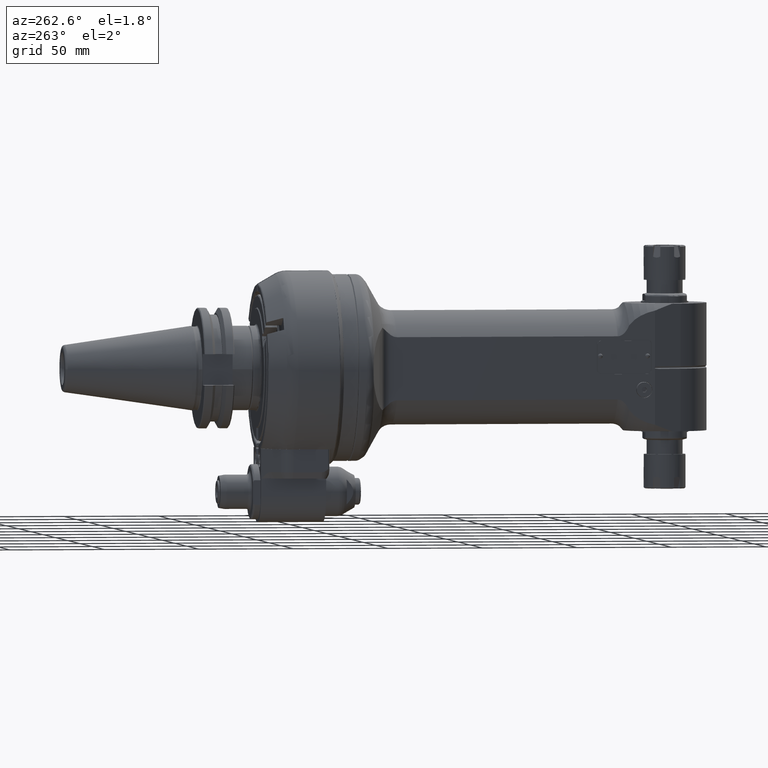
[diagram: clean part render]
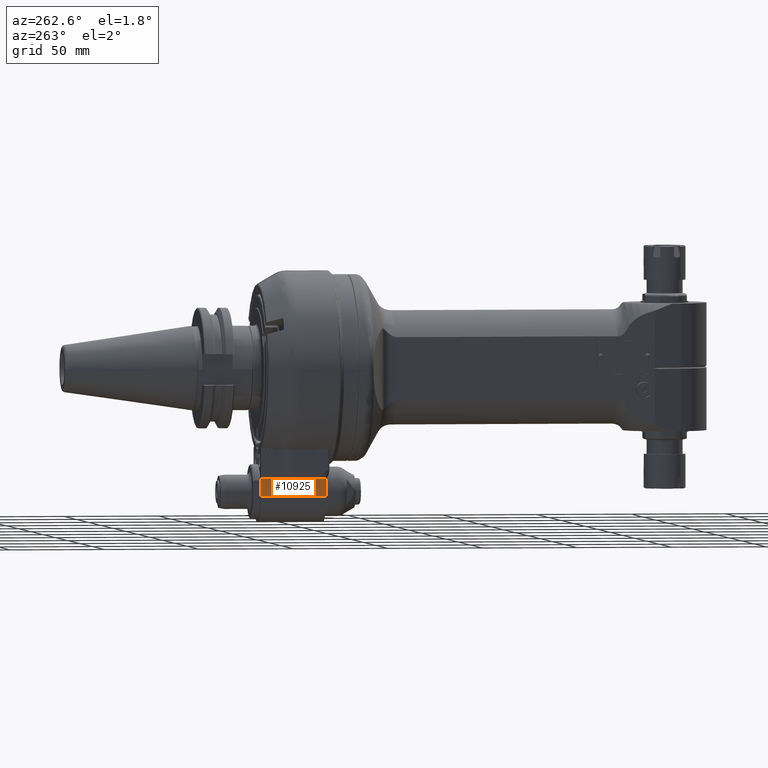
[diagram: same view with one face highlighted and labeled with its STEP entity id]
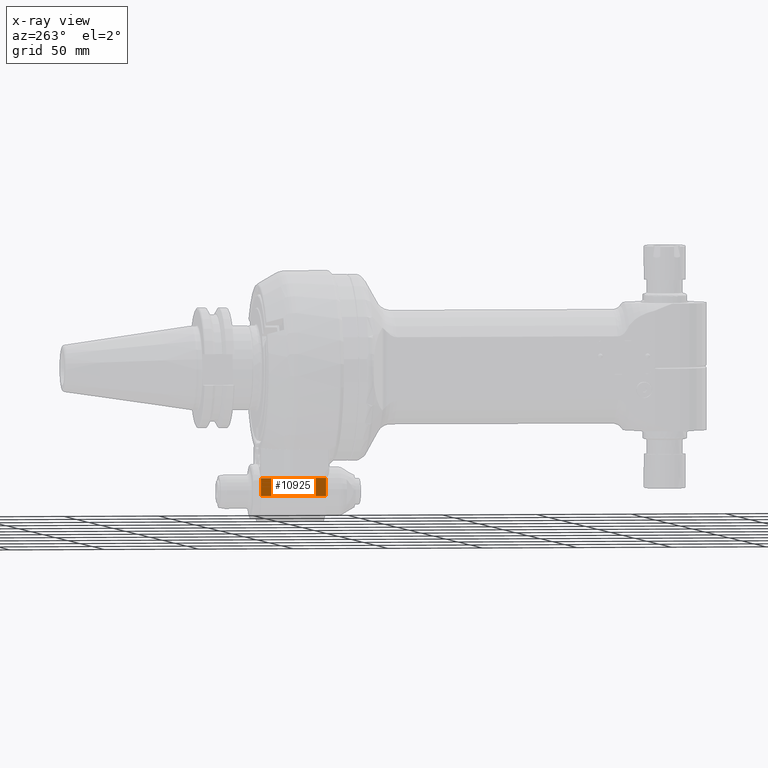
[diagram: x-ray of the same camera — body ghosted, the highlighted face saturated]
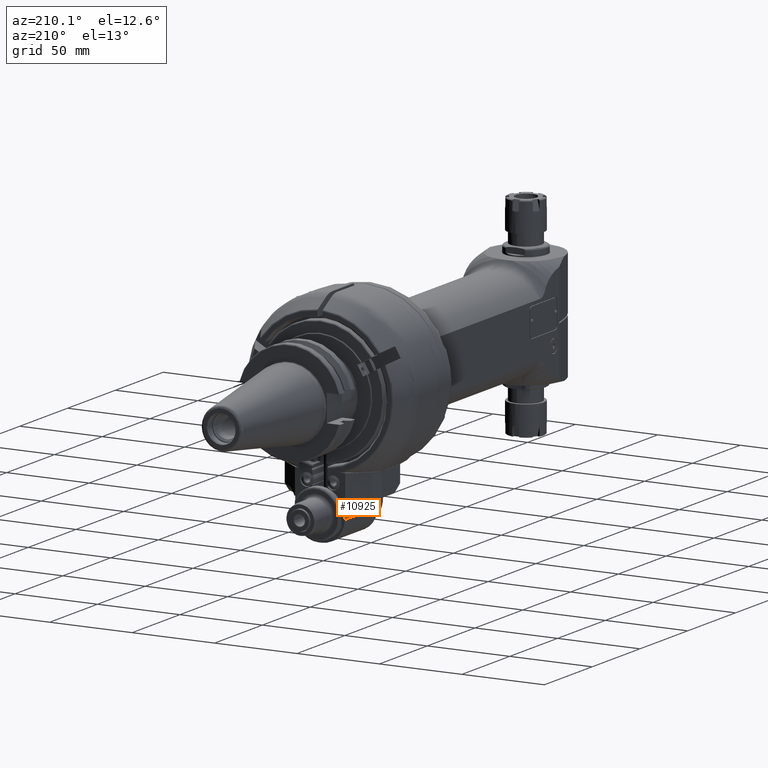
[diagram: same view with one face highlighted and labeled with its STEP entity id]
A machine part, auxiliary view. The second image highlights one B-rep face of the part: STEP entity #10925.
The next image is the same camera in x-ray: the body ghosted, the highlighted face saturated — about 0% of this face is hidden behind the body in this view.
A second angle (auxiliary view) of the same face is appended — the face is thin or edge-on in the first view.
In plain terms, the highlighted planar face has unit normal (1, 0, 0).
Its self-contained STEP definition (entity closure, byte-faithful):
#700=PLANE('',#11946);
#1147=FACE_OUTER_BOUND('',#1845,.T.);
#1845=EDGE_LOOP('',(#8587,#8588,#8589,#8590));
#2613=LINE('',#18189,#3361);
#2644=LINE('',#18524,#3392);
#2647=LINE('',#18535,#3395);
#2648=LINE('',#18536,#3396);
#3361=VECTOR('',#14055,0.374015748031496);
#3392=VECTOR('',#14148,1.35826771653543);
#3395=VECTOR('',#14161,0.374015748031496);
#3396=VECTOR('',#14162,1.35826771653543);
#4876=VERTEX_POINT('',#18186);
#4877=VERTEX_POINT('',#18188);
#4922=VERTEX_POINT('',#18522);
#4925=VERTEX_POINT('',#18534);
#6185=EDGE_CURVE('',#4877,#4876,#2613,.T.);
#6244=EDGE_CURVE('',#4876,#4922,#2644,.T.);
#6249=EDGE_CURVE('',#4925,#4922,#2647,.T.);
#6250=EDGE_CURVE('',#4877,#4925,#2648,.T.);
#8587=ORIENTED_EDGE('',*,*,#6249,.F.);
#8588=ORIENTED_EDGE('',*,*,#6250,.F.);
#8589=ORIENTED_EDGE('',*,*,#6185,.T.);
#8590=ORIENTED_EDGE('',*,*,#6244,.T.);
#10925=ADVANCED_FACE('',(#1147),#700,.F.);
#11946=AXIS2_PLACEMENT_3D('',#18533,#14159,#14160);
#14055=DIRECTION('',(0.,0.,1.));
#14148=DIRECTION('',(0.,1.,0.));
#14159=DIRECTION('center_axis',(1.,0.,0.));
#14160=DIRECTION('ref_axis',(0.,1.,0.));
#14161=DIRECTION('',(0.,0.,1.));
#14162=DIRECTION('',(0.,1.,0.));
#18186=CARTESIAN_POINT('',(-0.590551181102362,0.196850393700787,-2.26377952755906));
#18188=CARTESIAN_POINT('',(-0.590551181102362,0.196850393700787,-2.63779527559055));
#18189=CARTESIAN_POINT('',(-0.590551181102362,0.196850393700787,-2.63779527559055));
#18522=CARTESIAN_POINT('',(-0.590551181102362,1.55511811023622,-2.26377952755906));
#18524=CARTESIAN_POINT('',(-0.590551181102362,0.196850393700787,-2.26377952755906));
#18533=CARTESIAN_POINT('Origin',(-0.590551181102362,1.79133858267717,-3.17913385826772));
#18534=CARTESIAN_POINT('',(-0.590551181102362,1.55511811023622,-2.63779527559055));
#18535=CARTESIAN_POINT('',(-0.590551181102362,1.55511811023622,-2.63779527559055));
#18536=CARTESIAN_POINT('',(-0.590551181102362,0.196850393700787,-2.63779527559055));